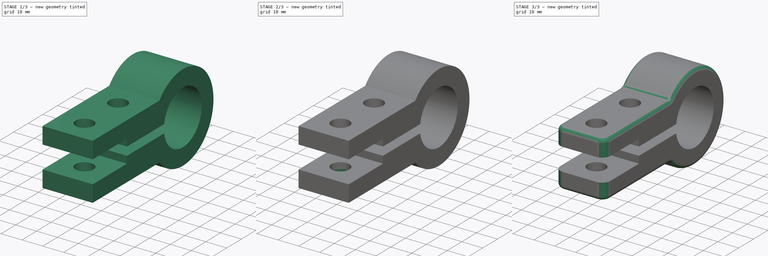
[diagram: build sequence overview — one tinted view per stage of 3, left to right]
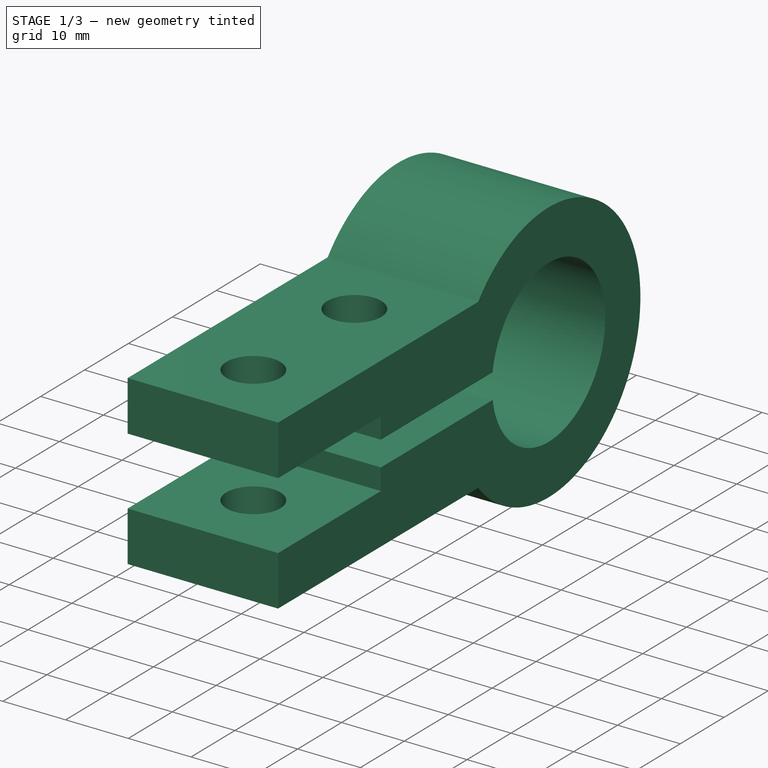
[diagram: stage 1 of 3 — iso view after this stage's code; geometry added in this stage tinted green]
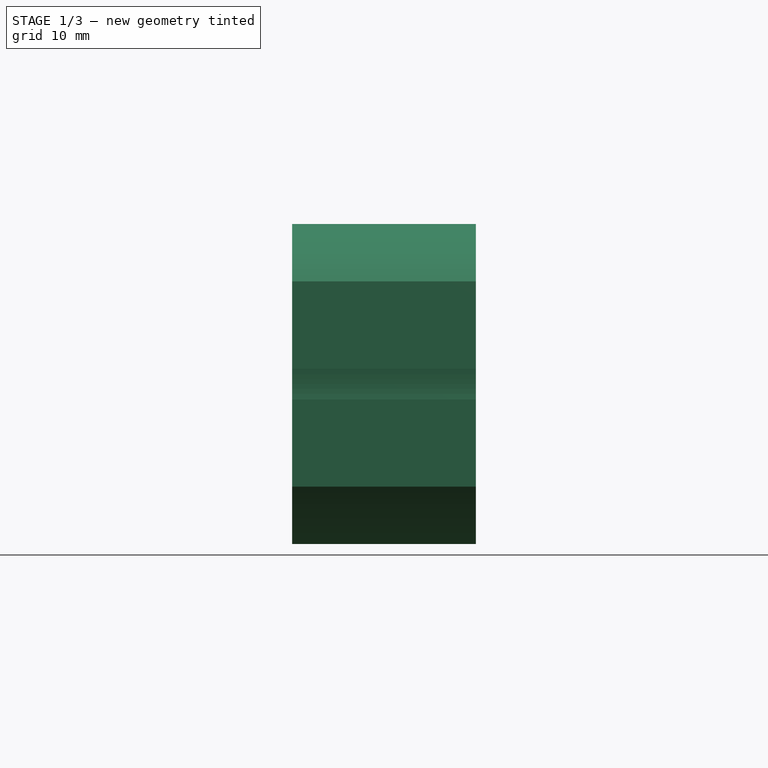
[diagram: stage 1 of 3 — front view after this stage's code; geometry added in this stage tinted green]
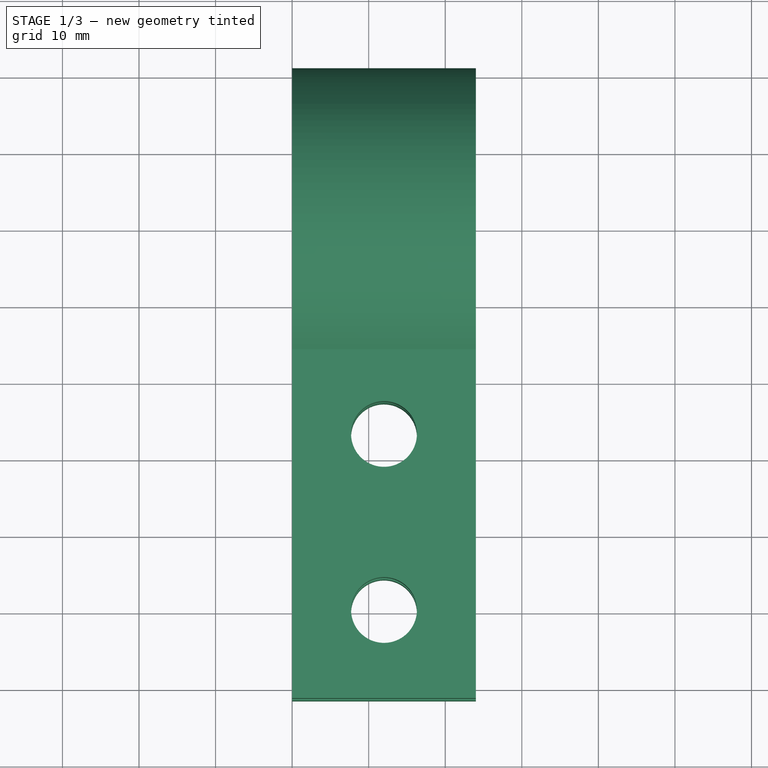
[diagram: stage 1 of 3 — top view after this stage's code; geometry added in this stage tinted green]
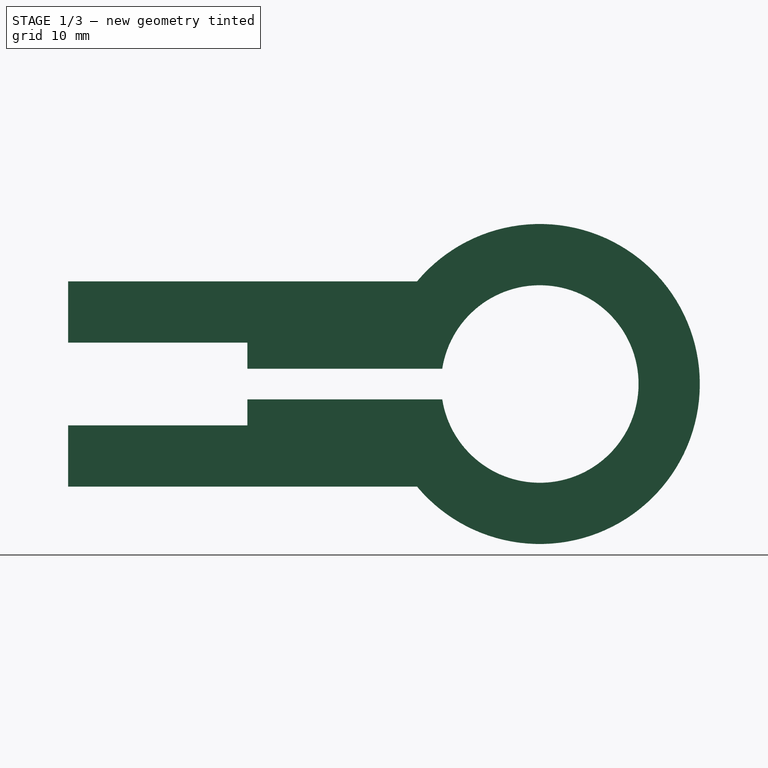
[diagram: stage 1 of 3 — right view after this stage's code; geometry added in this stage tinted green]
FCSTD DOCUMENT  (FreeCAD 1.0R39109 (Git))
Label: sway_motor_mount_front_plate_shaft_support
License: All rights reserved
LicenseURL: https://en.wikipedia.org/wiki/All_rights_reserved
objects: Sketcher::SketchObject×3, PartDesign::Pocket×2, PartDesign::Fillet×2, PartDesign::Pad×1, PartDesign::Body×1
note: 22 computed .brp shape members not serialized (recipe doc carries the construction recipe); baked Part::Feature solids carry a one-line shape summary decoded from their .brp

FEATURE [Sketcher::SketchObject] Sketch
  ArcFitTolerance = 1e-06
  AttachmentSupport = -> [YZ_Plane]
  FullyConstrained = true
  MakeInternals = false
  MapMode = 5
  Placement = pos=(0,0,0) rot=(0.57735,0.57735,0.57735;2.0944rad)
  sketch-geometry (17):
    g0: ArcOfCircle [constr] CenterX=0 CenterY=0 CenterZ=0 NormalX=0 NormalY=0 NormalZ=1 AngleXU=0 Radius=12.9 StartAngle=3.5735 EndAngle=8.99287
    g1: ArcOfCircle CenterX=0 CenterY=0 CenterZ=0 NormalX=0 NormalY=0 NormalZ=1 AngleXU=0 Radius=20.9 StartAngle=3.83759 EndAngle=8.72878
    g2: LineSegment [constr] StartX=-11.7154 StartY=5.4 StartZ=0 EndX=-38.6 EndY=5.4 EndZ=0
    g3: LineSegment StartX=-61.6 StartY=13.4 StartZ=0 EndX=-16.039 EndY=13.4 EndZ=0
    g4: LineSegment [constr] StartX=-11.7154 StartY=-5.4 StartZ=0 EndX=-38.6 EndY=-5.4 EndZ=0
    g5: LineSegment StartX=-61.6 StartY=-13.4 StartZ=0 EndX=-16.039 EndY=-13.4 EndZ=0
    g6: Circle [constr] CenterX=0 CenterY=0 CenterZ=0 NormalX=0 NormalY=0 NormalZ=1 AngleXU=0 Radius=12.5
    g7: LineSegment [constr] StartX=-12.5 StartY=0 StartZ=0 EndX=-38.6 EndY=0 EndZ=0
    g8: LineSegment StartX=-61.6 StartY=13.4 StartZ=0 EndX=-61.6 EndY=5.4 EndZ=0
    g9: LineSegment StartX=-61.6 StartY=5.4 StartZ=0 EndX=-38.2 EndY=5.4 EndZ=0
    g10: LineSegment StartX=-61.6 StartY=-13.4 StartZ=0 EndX=-61.6 EndY=-5.4 EndZ=0
    g11: LineSegment StartX=-61.6 StartY=-5.4 StartZ=0 EndX=-38.2 EndY=-5.4 EndZ=0
    g12: ArcOfCircle CenterX=0 CenterY=0 CenterZ=0 NormalX=0 NormalY=0 NormalZ=1 AngleXU=0 Radius=12.9 StartAngle=3.29726 EndAngle=9.26911
    g13: LineSegment StartX=-38.2 StartY=5.4 StartZ=0 EndX=-38.2 EndY=2 EndZ=0
    g14: LineSegment StartX=-38.2 StartY=2 StartZ=0 EndX=-12.744 EndY=2 EndZ=0
    g15: LineSegment StartX=-38.2 StartY=-5.4 StartZ=0 EndX=-38.2 EndY=-2 EndZ=0
    g16: LineSegment StartX=-38.2 StartY=-2 StartZ=0 EndX=-12.744 EndY=-2 EndZ=0
  constraints (52):
    c: Coincident(g0,g-1)
    c: Coincident(g1,g0)
    c: Diameter(g0) = 25.8
    c: Coincident(g2,g0)
    c: Horizontal(g2)
    c: Coincident(g3,g1)
    c: Coincident(g4,g0)
    c: Horizontal(g4)
    c: Coincident(g5,g1)
    c: Horizontal(g3)
    c: Horizontal(g5)
    c: Equal(g5,g3)
    c: Equal(g4,g2)
    c: DistanceY(g4,g2) = 10.8
    c: DistanceY(g5,g4) = 8
    c: Diameter(g1) = 41.8
    c: Coincident(g6,g0)
    c: Diameter(g6) = 25
    c: PointOnObject(g7,g6)
    c: PointOnObject(g7,g-1)
    c: Horizontal(g7)
    c: DistanceX(g7,g7) = 26.1
    c: DistanceX(g2,g7) = 0
    c: DistanceX(g2,g4) = 0
    c: DistanceX(g3,g2) = 23
    c: DistanceX(g3,g5) = 0
    c: Coincident(g3,g8)
    c: Vertical(g8)
    c: Coincident(g8,g9)
    c: PointOnObject(g9,g2)
    c: Horizontal(g9)
    c: Coincident(g5,g10)
    c: Vertical(g10)
    c: Coincident(g10,g11)
    c: PointOnObject(g11,g4)
    c: Horizontal(g11)
    c: DistanceX(g4,g11) = 0.4
    c: Equal(g11,g9)
    c: Coincident(g12,g0)
    c: PointOnObject(g12,g0)
    c: Coincident(g9,g13)
    c: Vertical(g13)
    c: Coincident(g13,g14)
    c: Coincident(g14,g12)
    c: Coincident(g11,g15)
    c: Vertical(g15)
    c: Coincident(g15,g16)
    c: Coincident(g16,g12)
    c: Horizontal(g16)
    c: Horizontal(g14)
    c: Equal(g13,g15)
    c: DistanceY(g15,g13) = 4
FEATURE [PartDesign::Pad] Pad
  Direction = (1,0,0)
  Length = 24
  Length2 = 10
  Placement = pos=(0,0,0) rot=(1,1,1;2.0944rad)
  Profile = -> Sketch
  ReferenceAxis = -> Sketch [N_Axis]
  Refine = true
  Suppressed = false
  Type = 0
FEATURE [Sketcher::SketchObject] Sketch001
  ArcFitTolerance = 1e-06
  AttachmentSupport = -> [Pad]
  FullyConstrained = true
  MakeInternals = false
  MapMode = 5
  Placement = pos=(-1.5e-15,4.5e-15,13.4) rot=(0,0,-1;1.5708rad)
  sketch-geometry (8):
    g0: LineSegment [constr] StartX=61.6 StartY=0 StartZ=0 EndX=61.6 EndY=24 EndZ=0
    g1: LineSegment [constr] StartX=61.6 StartY=24 StartZ=0 EndX=38.6 EndY=24 EndZ=0
    g2: LineSegment [constr] StartX=38.6 StartY=24 StartZ=0 EndX=38.6 EndY=0 EndZ=0
    g3: LineSegment [constr] StartX=38.6 StartY=0 StartZ=0 EndX=61.6 EndY=0 EndZ=0
    g4: LineSegment [constr] StartX=38.6 StartY=0 StartZ=0 EndX=61.6 EndY=24 EndZ=0
    g5: LineSegment [constr] StartX=38.6 StartY=24 StartZ=0 EndX=61.6 EndY=0 EndZ=0
    g6: Circle CenterX=50.1 CenterY=12 CenterZ=0 NormalX=0 NormalY=0 NormalZ=1 AngleXU=0 Radius=4.3
    g7: Circle CenterX=27.1 CenterY=12 CenterZ=0 NormalX=0 NormalY=0 NormalZ=1 AngleXU=0 Radius=4.3
  constraints (21):
    c: Coincident(g0,g1)
    c: Coincident(g1,g2)
    c: Coincident(g2,g3)
    c: Coincident(g3,g0)
    c: Vertical(g0)
    c: Vertical(g2)
    c: Horizontal(g1)
    c: Horizontal(g3)
    c: Distance(g0,g2) = 23
    c: Distance(g1,g3) = 24
    c: PointOnObject(g0,g-1)
    c: DistanceX(g0) = 61.6
    c: Coincident(g4,g2)
    c: Coincident(g4,g0)
    c: Coincident(g5,g1)
    c: Coincident(g5,g0)
    c: Diameter(g6) = 8.6
    c: Symmetric(g4,g4,g6)
    c: Equal(g6,g7)
    c: DistanceY(g7,g6) = 0
    c: DistanceX(g7,g6) = 23
FEATURE [PartDesign::Pocket] Pocket
  BaseFeature = -> Pad
  Direction = (0,0,-1)
  Length = 5
  Length2 = 5
  Placement = pos=(0,0,0) rot=(1,1,1;2.0944rad)
  Profile = -> Sketch001
  ReferenceAxis = -> Sketch001 [N_Axis]
  Refine = true
  Suppressed = false
  Type = 1
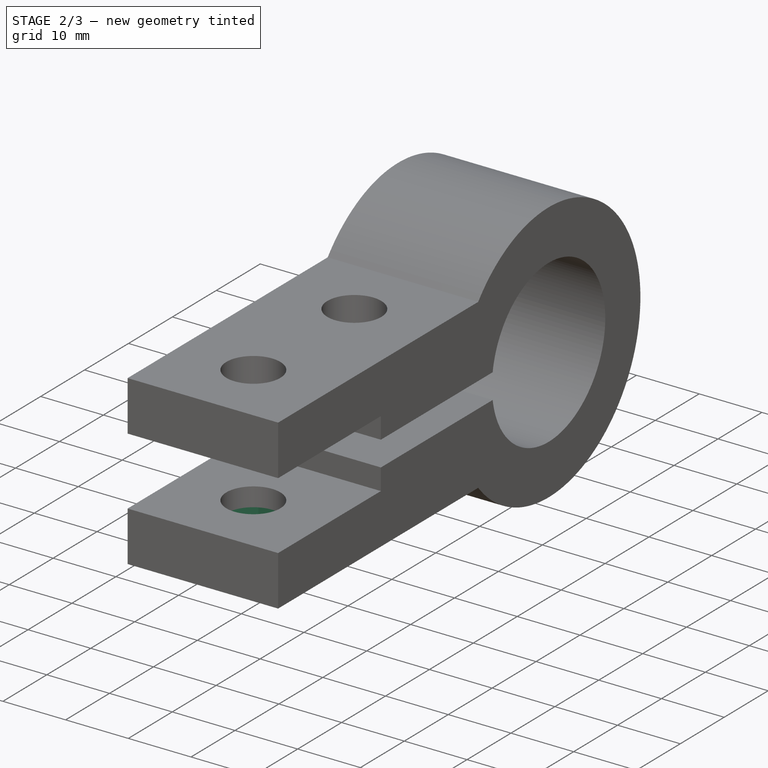
[diagram: stage 2 of 3 — iso view after this stage's code; geometry added in this stage tinted green]
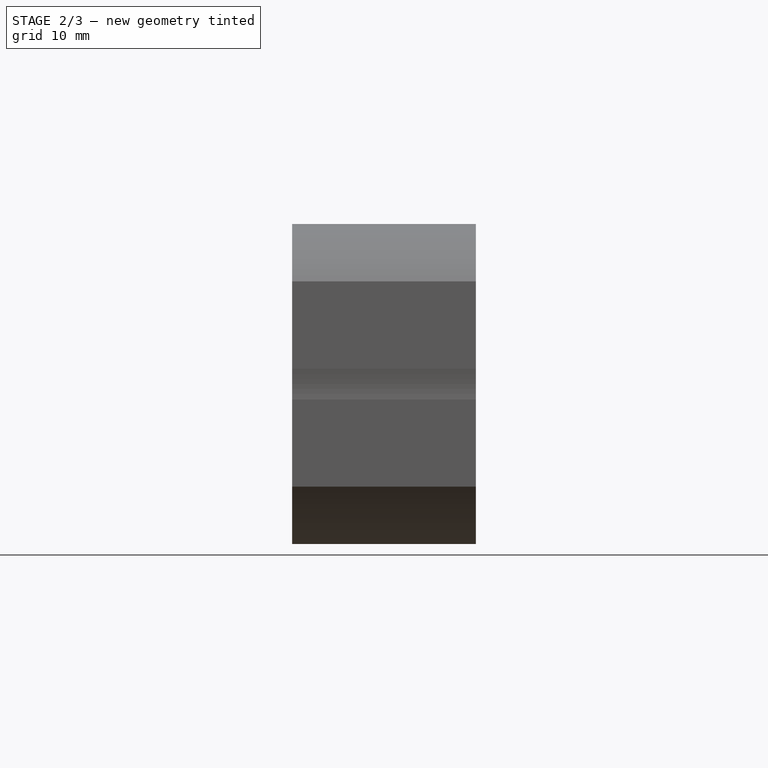
[diagram: stage 2 of 3 — front view after this stage's code; geometry added in this stage tinted green]
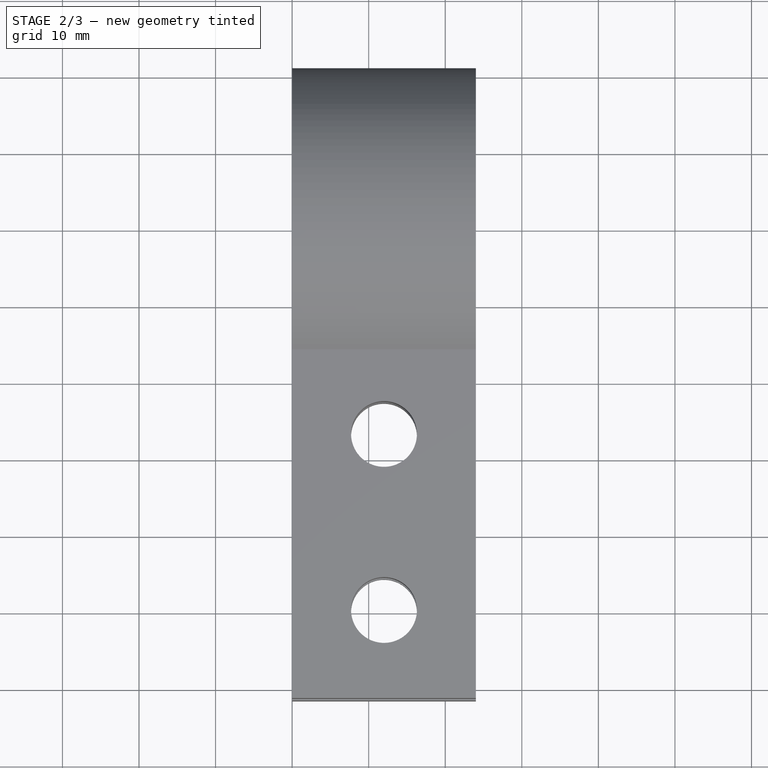
[diagram: stage 2 of 3 — top view after this stage's code; geometry added in this stage tinted green]
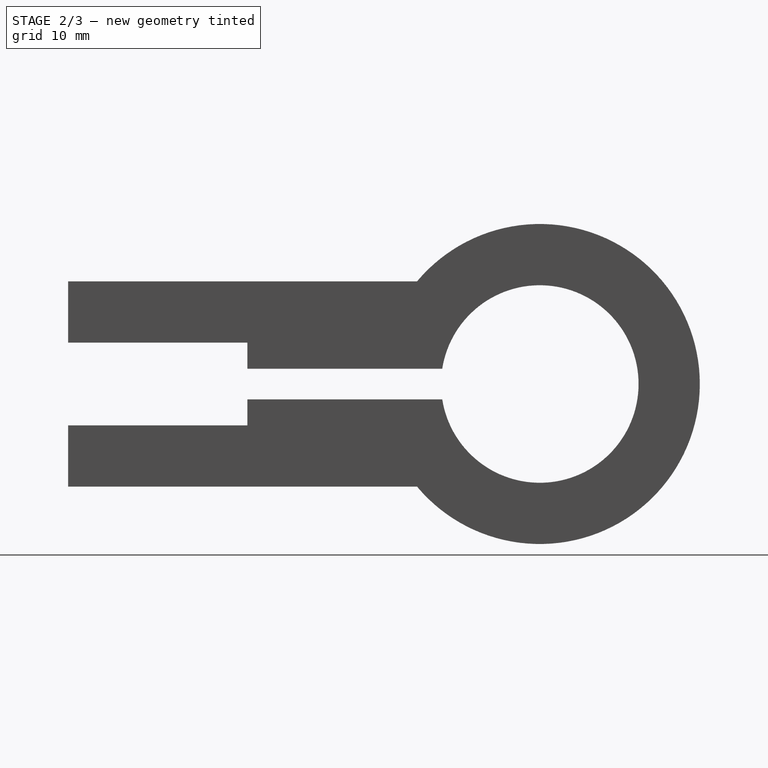
[diagram: stage 2 of 3 — right view after this stage's code; geometry added in this stage tinted green]
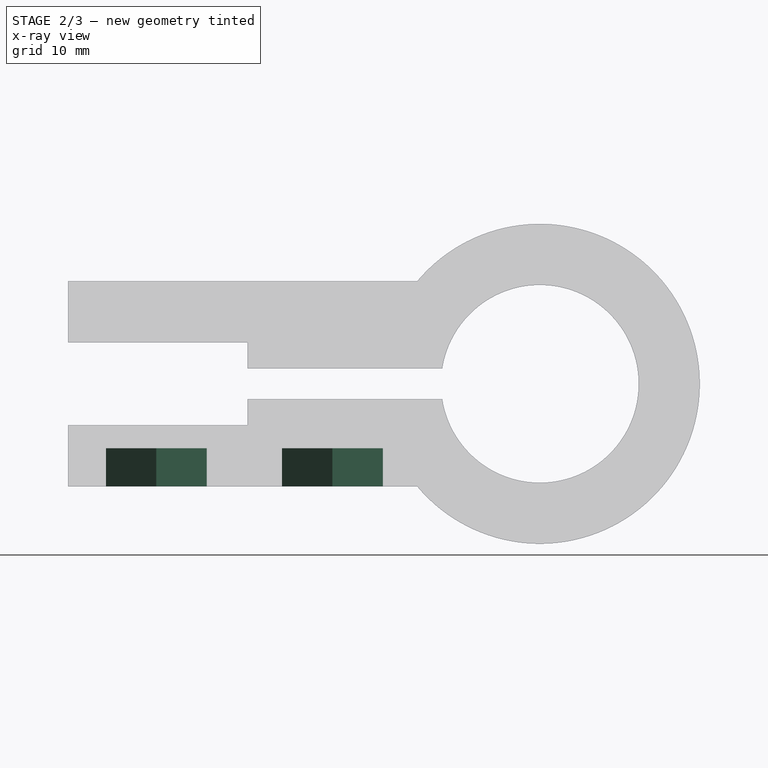
[diagram: stage 2 of 3 — x-ray composite at the right view; earlier geometry ghosted, this stage's added geometry solid]
FEATURE [Sketcher::SketchObject] Sketch002
  ArcFitTolerance = 1e-06
  AttachmentSupport = -> [Pocket]
  FullyConstrained = true
  MakeInternals = false
  MapMode = 5
  Placement = pos=(6e-15,-6e-15,-13.4) rot=(0.707107,0.707107,0;3.14159rad)
  sketch-geometry (16):
    g0: Circle [constr] CenterX=-50.1 CenterY=12 CenterZ=0 NormalX=0 NormalY=0 NormalZ=1 AngleXU=0 Radius=4.3
    g1: Circle [constr] CenterX=-27.1 CenterY=12 CenterZ=0 NormalX=0 NormalY=0 NormalZ=1 AngleXU=0 Radius=4.3
    g2: LineSegment StartX=-43.5 StartY=8.18949 StartZ=0 EndX=-43.5 EndY=15.8105 EndZ=0
    g3: LineSegment StartX=-43.5 StartY=15.8105 StartZ=0 EndX=-50.1 EndY=19.621 EndZ=0
    g4: LineSegment StartX=-50.1 StartY=19.621 StartZ=0 EndX=-56.7 EndY=15.8105 EndZ=0
    g5: LineSegment StartX=-56.7 StartY=15.8105 StartZ=0 EndX=-56.7 EndY=8.18949 EndZ=0
    g6: LineSegment StartX=-56.7 StartY=8.18949 StartZ=0 EndX=-50.1 EndY=4.37898 EndZ=0
    g7: LineSegment StartX=-50.1 StartY=4.37898 StartZ=0 EndX=-43.5 EndY=8.18949 EndZ=0
    g8: Circle [constr] CenterX=-50.1 CenterY=12 CenterZ=0 NormalX=0 NormalY=0 NormalZ=1 AngleXU=0 Radius=7.62102
    g9: LineSegment StartX=-20.5 StartY=8.18949 StartZ=0 EndX=-20.5 EndY=15.8105 EndZ=0
    g10: LineSegment StartX=-20.5 StartY=15.8105 StartZ=0 EndX=-27.1 EndY=19.621 EndZ=0
    g11: LineSegment StartX=-27.1 StartY=19.621 StartZ=0 EndX=-33.7 EndY=15.8105 EndZ=0
    g12: LineSegment StartX=-33.7 StartY=15.8105 StartZ=0 EndX=-33.7 EndY=8.18949 EndZ=0
    g13: LineSegment StartX=-33.7 StartY=8.18949 StartZ=0 EndX=-27.1 EndY=4.37898 EndZ=0
    g14: LineSegment StartX=-27.1 StartY=4.37898 StartZ=0 EndX=-20.5 EndY=8.18949 EndZ=0
    g15: Circle [constr] CenterX=-27.1 CenterY=12 CenterZ=0 NormalX=0 NormalY=0 NormalZ=1 AngleXU=0 Radius=7.62102
  constraints (38):
    c: Diameter(g0) = 8.6
    c: DistanceY(g0) = 12
    c: DistanceX(g0) = -50.1
    c: Equal(g1,g0)
    c: DistanceX(g0,g1) = 23
    c: DistanceY(g0,g1) = 0
    c: Coincident(g2,g3)
    c: Coincident(g3,g4)
    c: Coincident(g4,g5)
    c: Coincident(g5,g6)
    c: Coincident(g6,g7)
    c: Coincident(g7,g2)
    c: Equal(g2, g3-g7) x5
    c: PointOnObject(g2,g8)
    c: PointOnObject(g3,g8)
    c: PointOnObject(g4,g8)
    c: PointOnObject(g5,g8)
    c: PointOnObject(g6,g8)
    c: PointOnObject(g7,g8)
    c: Coincident(g8,g0)
    c: Coincident(g9,g10)
    c: Coincident(g10,g11)
    c: Coincident(g11,g12)
    c: Coincident(g12,g13)
    c: Coincident(g13,g14)
    c: Coincident(g14,g9)
    c: Equal(g9, g10-g14) x5
    c: PointOnObject(g9,g15)
    c: PointOnObject(g10,g15)
    c: PointOnObject(g11,g15)
    c: PointOnObject(g12,g15)
    c: PointOnObject(g13,g15)
    c: PointOnObject(g14,g15)
    c: Coincident(g15,g1)
    c: Vertical(g5)
    c: Vertical(g12)
    c: DistanceX(g4,g2) = 13.2
    c: Equal(g11,g4)
FEATURE [PartDesign::Pocket] Pocket001
  BaseFeature = -> Pocket
  Direction = (0,0,1)
  Length = 5
  Length2 = 5
  Placement = pos=(0,0,0) rot=(1,1,1;2.0944rad)
  Profile = -> Sketch002
  ReferenceAxis = -> Sketch002 [N_Axis]
  Refine = true
  Suppressed = false
  Type = 0
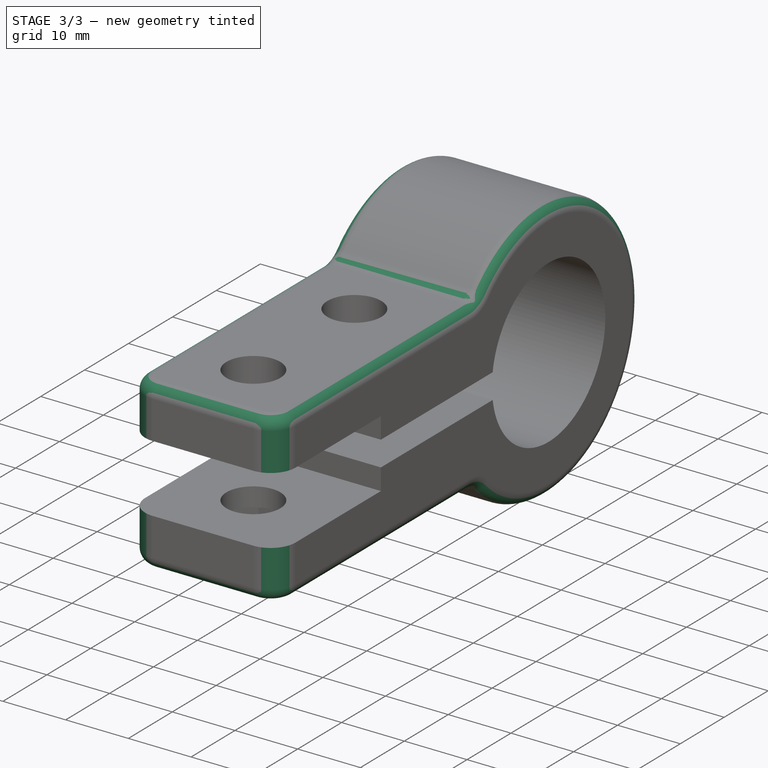
[diagram: stage 3 of 3 — iso view after this stage's code; geometry added in this stage tinted green]
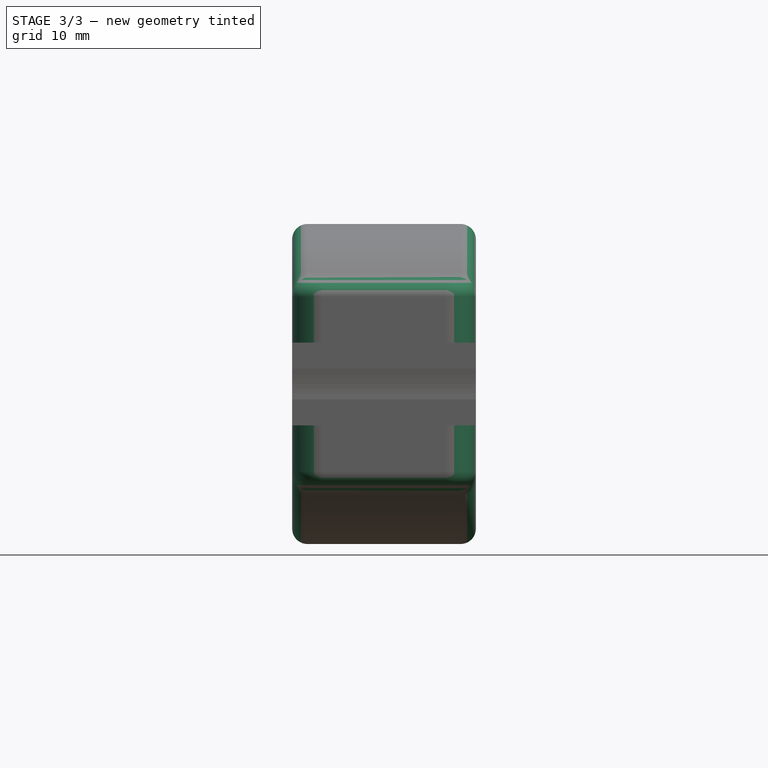
[diagram: stage 3 of 3 — front view after this stage's code; geometry added in this stage tinted green]
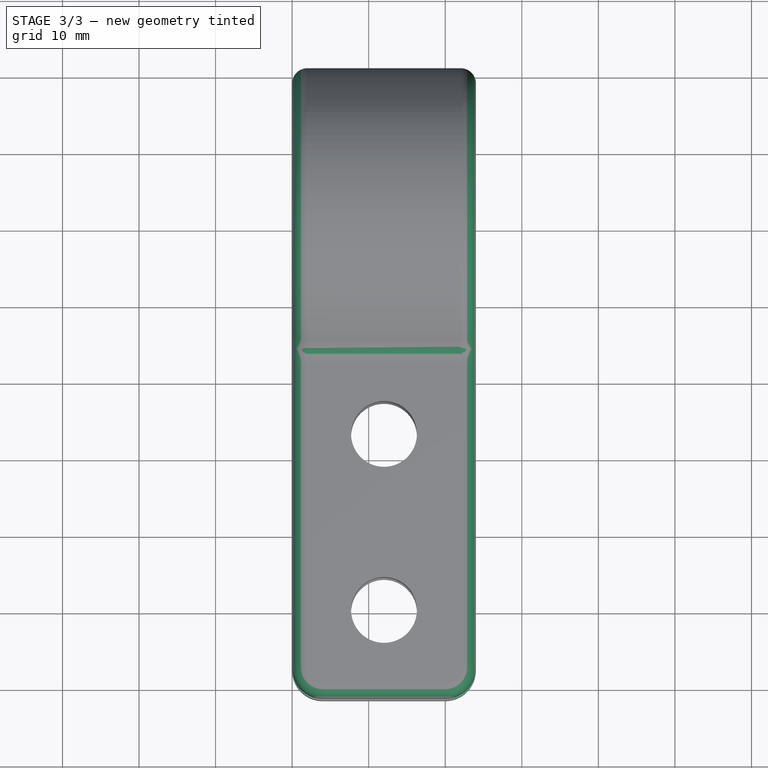
[diagram: stage 3 of 3 — top view after this stage's code; geometry added in this stage tinted green]
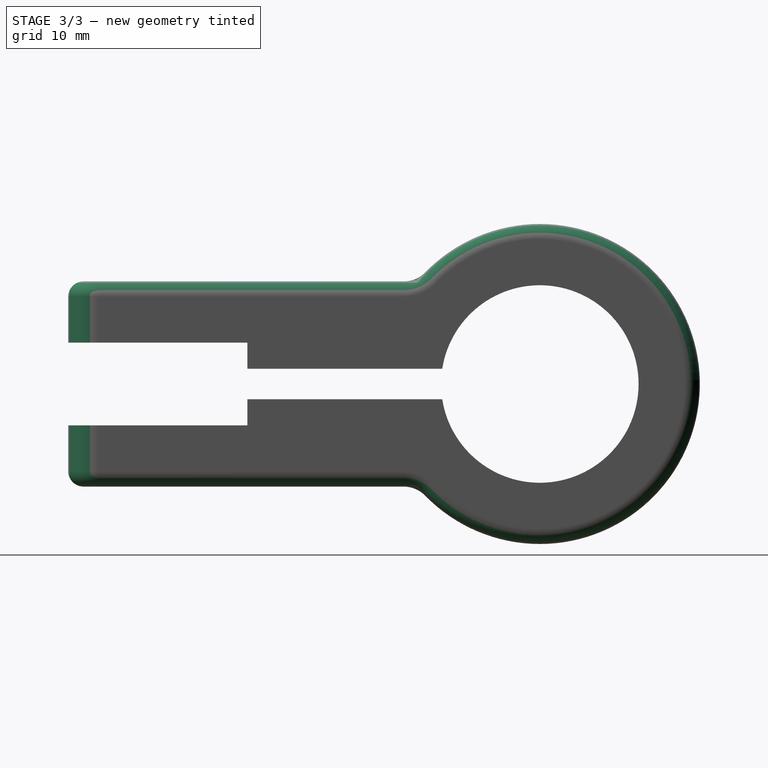
[diagram: stage 3 of 3 — right view after this stage's code; geometry added in this stage tinted green]
FEATURE [PartDesign::Fillet] Fillet
  Base = -> Pocket001 [Edge32,Edge45,Edge12,Edge22,Edge7,Edge8]
  BaseFeature = -> Pocket001
  Placement = pos=(0,0,0) rot=(1,1,1;2.0944rad)
  Radius = 4
  Refine = true
  SupportTransform = false
  Suppressed = false
  UseAllEdges = false
FEATURE [PartDesign::Fillet] Fillet001
  Base = -> Fillet [Edge16]
  BaseFeature = -> Fillet
  Placement = pos=(0,0,0) rot=(1,1,1;2.0944rad)
  Radius = 2
  Refine = true
  SupportTransform = false
  Suppressed = false
  UseAllEdges = false
FEATURE [PartDesign::Body] Body  label="sway_motor_mount_front_plate_shaft_support"
  AllowCompound = false
  Group = -> [Sketch,Pad,Sketch001,Pocket,Sketch002,Pocket001,Fillet,Fillet001]
  Origin = -> Origin
  Tip = -> Fillet001
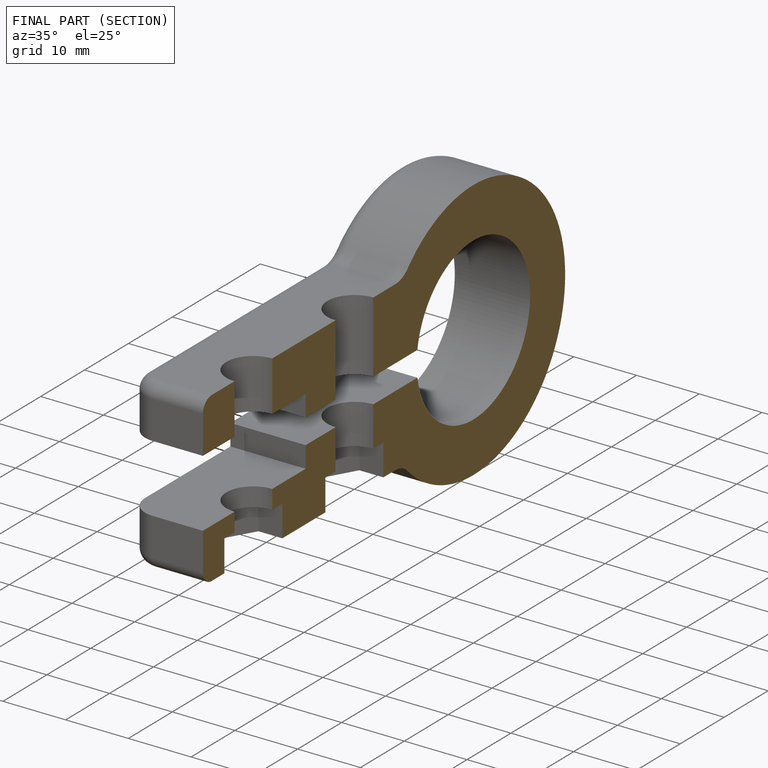
[diagram: finished part — half-section view (interior)]
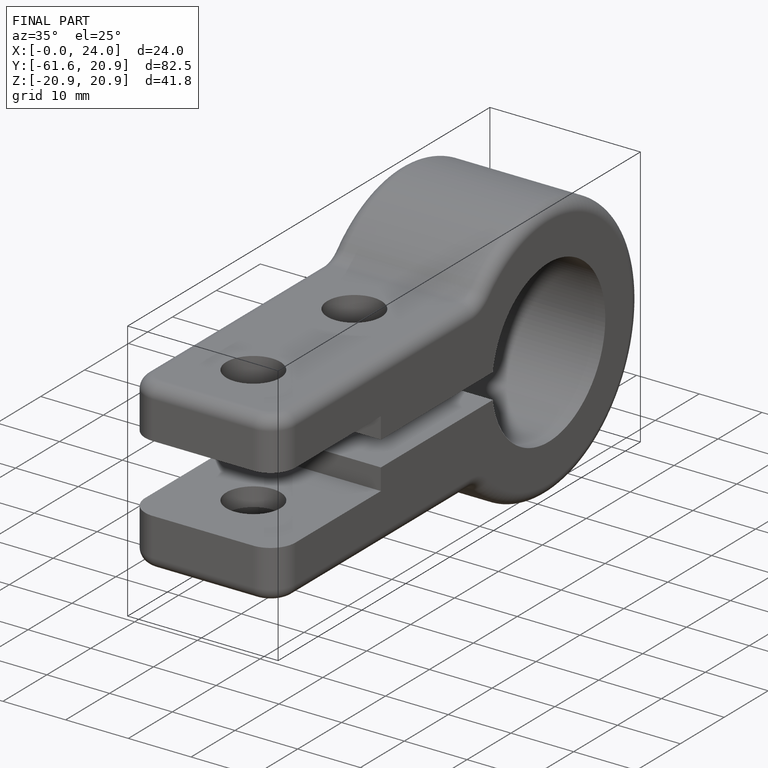
[diagram: finished part — iso view with bounding-box wireframe]
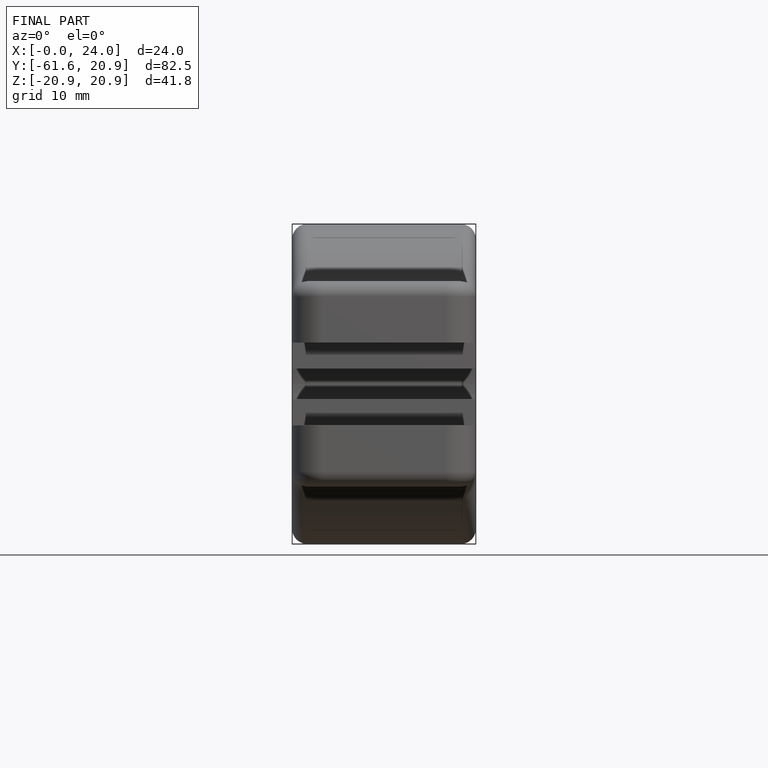
[diagram: finished part — front view with bounding-box wireframe]
